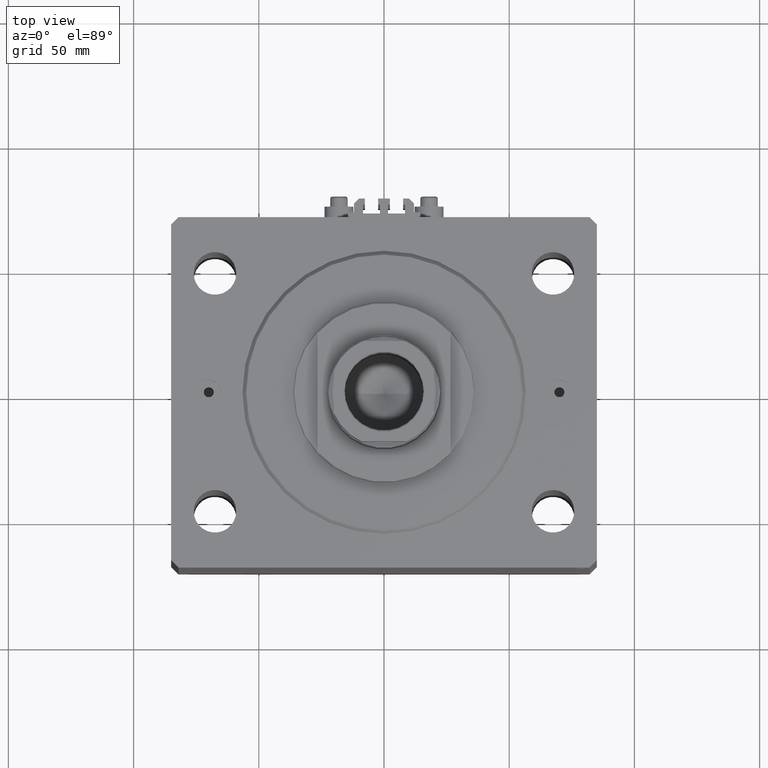
[diagram: clean part render]
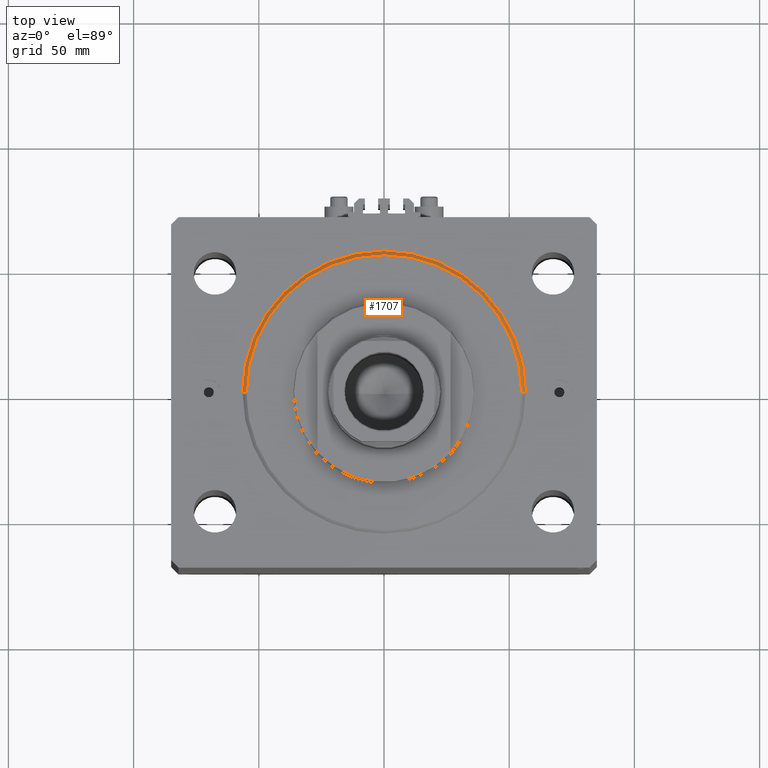
[diagram: same view with one face highlighted and labeled with its STEP entity id]
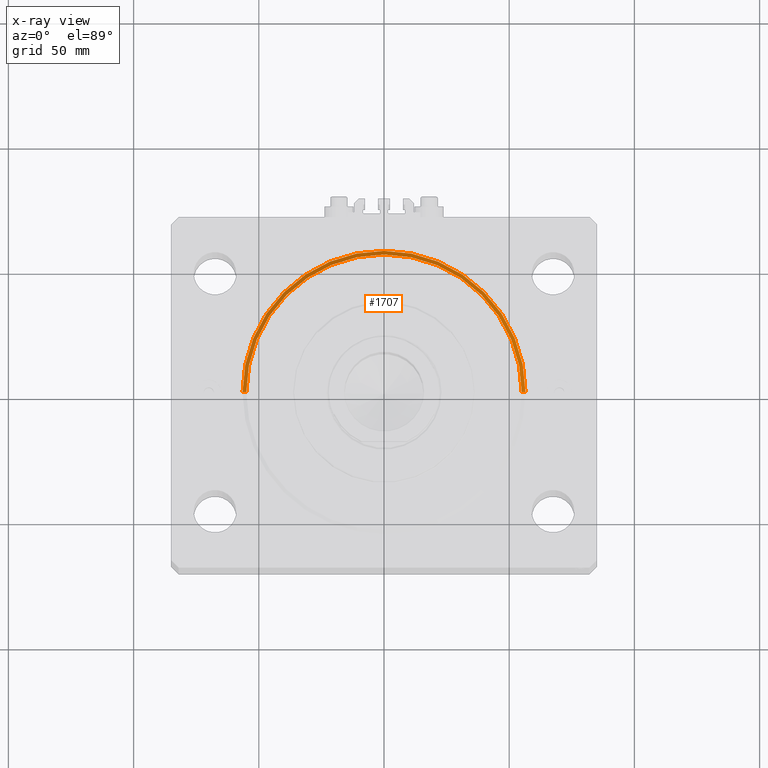
[diagram: x-ray of the same camera — body ghosted, the highlighted face saturated]
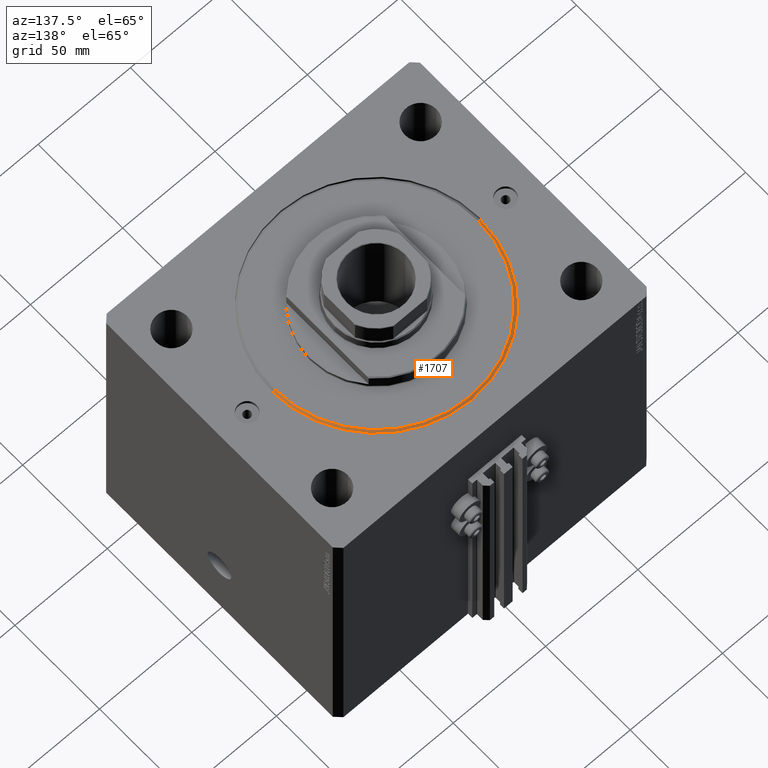
[diagram: same view with one face highlighted and labeled with its STEP entity id]
A machine part, top view. The second image highlights one B-rep face of the part: STEP entity #1707.
The next image is the same camera in x-ray: the body ghosted, the highlighted face saturated — about 0% of this face is hidden behind the body in this view.
A second angle (auxiliary view) of the same face is appended — the face is thin or edge-on in the first view.
In plain terms, the highlighted conical surface has half-angle 45 deg.
Its self-contained STEP definition (entity closure, byte-faithful):
#784 = EDGE_CURVE ( 'NONE', #6935, #25030, #42327, .T. ) ;
#1299 = CARTESIAN_POINT ( 'NONE',  ( 0.000000000000000000, 0.000000000000000000, 1.499999999999994449 ) ) ;
#1707 = ADVANCED_FACE ( 'NONE', ( #32412 ), #29289, .T. ) ;
#2210 = EDGE_LOOP ( 'NONE', ( #24168, #19904, #31315, #14895 ) ) ;
#4397 = AXIS2_PLACEMENT_3D ( 'NONE', #1299, #15874, #22139 ) ;
#6935 = VERTEX_POINT ( 'NONE', #23255 ) ;
#11277 = DIRECTION ( 'NONE',  ( -0.7071067811865459074, 8.659560562354911904E-17, 0.7071067811865491270 ) ) ;
#11617 = EDGE_CURVE ( 'NONE', #22753, #6935, #47114, .T. ) ;
#12114 = EDGE_CURVE ( 'NONE', #22753, #21033, #22051, .T. ) ;
#13800 = CARTESIAN_POINT ( 'NONE',  ( 0.000000000000000000, 0.000000000000000000, 1.499999999999994449 ) ) ;
#13954 = CARTESIAN_POINT ( 'NONE',  ( 56.50000000000000711, 6.919254415182546126E-15, 1.499999999999994449 ) ) ;
#14013 = VECTOR ( 'NONE', #17271, 1000.000000000000000 ) ;
#14505 = DIRECTION ( 'NONE',  ( 1.000000000000000000, 0.000000000000000000, 0.000000000000000000 ) ) ;
#14895 = ORIENTED_EDGE ( 'NONE', *, *, #784, .F. ) ;
#15874 = DIRECTION ( 'NONE',  ( -0.000000000000000000, -0.000000000000000000, 1.000000000000000000 ) ) ;
#16632 = VECTOR ( 'NONE', #11277, 1000.000000000000000 ) ;
#17271 = DIRECTION ( 'NONE',  ( 0.7071067811865459074, 0.000000000000000000, 0.7071067811865491270 ) ) ;
#19204 = CARTESIAN_POINT ( 'NONE',  ( -56.50000000000000711, 0.000000000000000000, 1.499999999999994449 ) ) ;
#19904 = ORIENTED_EDGE ( 'NONE', *, *, #12114, .T. ) ;
#21033 = VERTEX_POINT ( 'NONE', #19204 ) ;
#22051 = LINE ( 'NONE', #29432, #16632 ) ;
#22139 = DIRECTION ( 'NONE',  ( 1.000000000000000000, 0.000000000000000000, 0.000000000000000000 ) ) ;
#22753 = VERTEX_POINT ( 'NONE', #29538 ) ;
#23255 = CARTESIAN_POINT ( 'NONE',  ( 55.00000000000002132, 0.000000000000000000, 0.000000000000000000 ) ) ;
#23533 = AXIS2_PLACEMENT_3D ( 'NONE', #24278, #24522, #36186 ) ;
#23897 = EDGE_CURVE ( 'NONE', #25030, #21033, #24992, .T. ) ;
#24168 = ORIENTED_EDGE ( 'NONE', *, *, #11617, .F. ) ;
#24212 = CARTESIAN_POINT ( 'NONE',  ( 56.50000000000000711, 0.000000000000000000, 1.499999999999994449 ) ) ;
#24278 = CARTESIAN_POINT ( 'NONE',  ( 0.000000000000000000, 0.000000000000000000, 0.000000000000000000 ) ) ;
#24522 = DIRECTION ( 'NONE',  ( -0.000000000000000000, -0.000000000000000000, -1.000000000000000000 ) ) ;
#24992 = CIRCLE ( 'NONE', #4397, 56.50000000000000711 ) ;
#25030 = VERTEX_POINT ( 'NONE', #13954 ) ;
#25382 = AXIS2_PLACEMENT_3D ( 'NONE', #13800, #25720, #14505 ) ;
#25720 = DIRECTION ( 'NONE',  ( -0.000000000000000000, -0.000000000000000000, 1.000000000000000000 ) ) ;
#29289 = CONICAL_SURFACE ( 'NONE', #25382, 56.50000000000000711, 0.7853981633974460586 ) ;
#29432 = CARTESIAN_POINT ( 'NONE',  ( -56.50000000000000711, 6.919254415182546126E-15, 1.499999999999994449 ) ) ;
#29538 = CARTESIAN_POINT ( 'NONE',  ( -55.00000000000002132, 6.827405905246496343E-15, 0.000000000000000000 ) ) ;
#31315 = ORIENTED_EDGE ( 'NONE', *, *, #23897, .F. ) ;
#32412 = FACE_OUTER_BOUND ( 'NONE', #2210, .T. ) ;
#36186 = DIRECTION ( 'NONE',  ( 1.000000000000000000, 0.000000000000000000, 0.000000000000000000 ) ) ;
#42327 = LINE ( 'NONE', #24212, #14013 ) ;
#47114 = CIRCLE ( 'NONE', #23533, 55.00000000000002132 ) ;